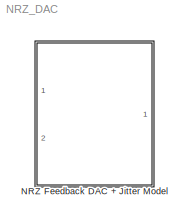
MODEL NRZ_DAC
KIND model
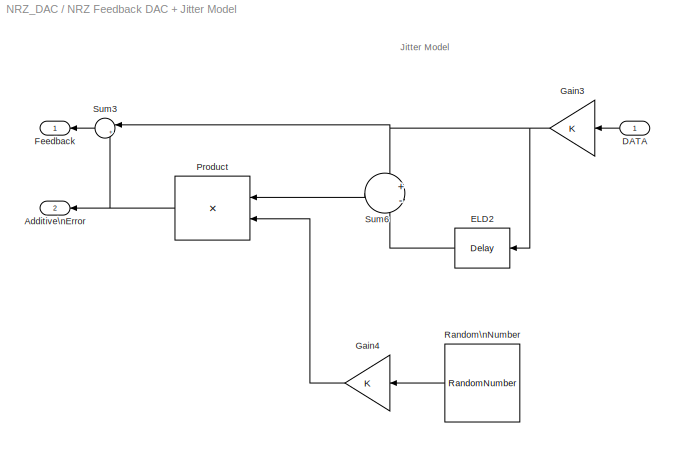
BLOCK [SubSystem] NRZ Feedback DAC + Jitter Model
  FunctionWithSeparateData = off
  MaskHideContents = off
  MinAlgLoopOccurrences = off
  Opaque = off
  Ports = [1, 2]
  PropExecContextOutsideSubsystem = off
  RTWSystemCode = Auto
  RequestExecContextInheritance = off
  SID = 497
BLOCK [Outport] NRZ Feedback DAC + Jitter Model/Additive\nError
  IconDisplay = Port number
  Port = 2
  SID = 500
BLOCK [Inport] NRZ Feedback DAC + Jitter Model/DATA
  IconDisplay = Port number
  SID = 498
BLOCK [Reference] NRZ Feedback DAC + Jitter Model/ELD2  REF=dspsigops/Delay
  InputProcessing = Inherited (this choice will be removed - see release notes)
  Ports = [1, 1]
  SID = 453
  SourceBlock = dspsigops/Delay
  SourceType = Delay
  UserData = DataTag0
  UserDataPersistent = on
  delay = 1
  dif_ic_for_ch = off
  dif_ic_for_dly = off
  dly_unit = Samples
  ic = 0
  ic_detail = off
  reset_popup = None
BLOCK [Outport] NRZ Feedback DAC + Jitter Model/Feedback
  IconDisplay = Port number
  SID = 499
BLOCK [Gain] NRZ Feedback DAC + Jitter Model/Gain3
  OutDataTypeStr = Inherit: Inherit via internal rule
  ParamDataTypeStr = Inherit: Inherit via internal rule
  SID = 452
  SampleTime = 1/Fs
  SaturateOnIntegerOverflow = off
BLOCK [Gain] NRZ Feedback DAC + Jitter Model/Gain4
  OutDataTypeStr = Inherit: Inherit via internal rule
  ParamDataTypeStr = Inherit: Inherit via internal rule
  SID = 458
  SampleTime = 1/Fs
  SaturateOnIntegerOverflow = off
BLOCK [Product] NRZ Feedback DAC + Jitter Model/Product
  InputSameDT = off
  OutDataTypeStr = Inherit: Inherit via internal rule
  Ports = [2, 1]
  SID = 491
  SampleTime = 1/Fs
  SaturateOnIntegerOverflow = off
BLOCK [RandomNumber] NRZ Feedback DAC + Jitter Model/Random\nNumber
  Mean = 100e-12
  SID = 492
  SampleTime = 1/Fs
  Seed = 1
  Variance = 50e-9
BLOCK [Sum] NRZ Feedback DAC + Jitter Model/Sum3
  IconShape = round
  InputSameDT = off
  Inputs = |++
  OutDataTypeStr = Inherit: Inherit via internal rule
  Ports = [2, 1]
  SID = 451
  SampleTime = 1/Fs
  SaturateOnIntegerOverflow = off
BLOCK [Sum] NRZ Feedback DAC + Jitter Model/Sum6
  IconShape = round
  InputSameDT = off
  Inputs = +-
  OutDataTypeStr = Inherit: Inherit via internal rule
  Ports = [2, 1]
  SID = 454
  SampleTime = 1/Fs
  SaturateOnIntegerOverflow = off
ANNOTATION NRZ Feedback DAC + Jitter Model: Jitter Model
LINE NRZ Feedback DAC + Jitter Model/DATA:1 -> NRZ Feedback DAC + Jitter Model/Gain3:1
LINE NRZ Feedback DAC + Jitter Model/ELD2:1 -> NRZ Feedback DAC + Jitter Model/Sum6:2
NET NRZ Feedback DAC + Jitter Model/Gain3:1 -> NRZ Feedback DAC + Jitter Model/ELD2:1, NRZ Feedback DAC + Jitter Model/Sum3:1, NRZ Feedback DAC + Jitter Model/Sum6:1
LINE NRZ Feedback DAC + Jitter Model/Gain4:1 -> NRZ Feedback DAC + Jitter Model/Product:2
NET NRZ Feedback DAC + Jitter Model/Product:1 -> NRZ Feedback DAC + Jitter Model/Additive\nError:1, NRZ Feedback DAC + Jitter Model/Sum3:2
LINE NRZ Feedback DAC + Jitter Model/Random\nNumber:1 -> NRZ Feedback DAC + Jitter Model/Gain4:1
LINE NRZ Feedback DAC + Jitter Model/Sum3:1 -> NRZ Feedback DAC + Jitter Model/Feedback:1
LINE NRZ Feedback DAC + Jitter Model/Sum6:1 -> NRZ Feedback DAC + Jitter Model/Product:1
note: NET lines group one-source signal fan-out (src -> all destinations, sorted); 1:1 wires keep LINE
